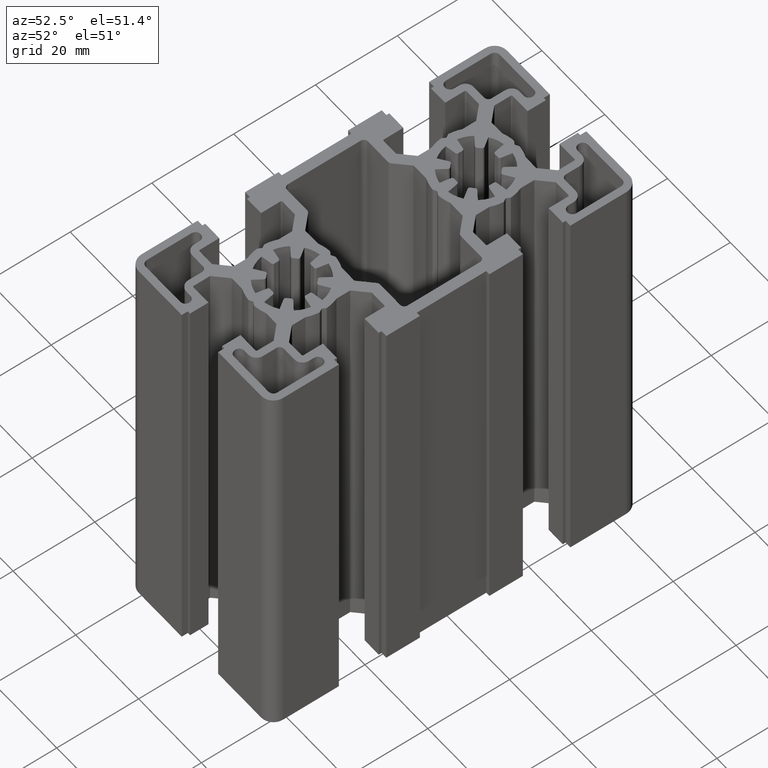
[diagram: clean part render]
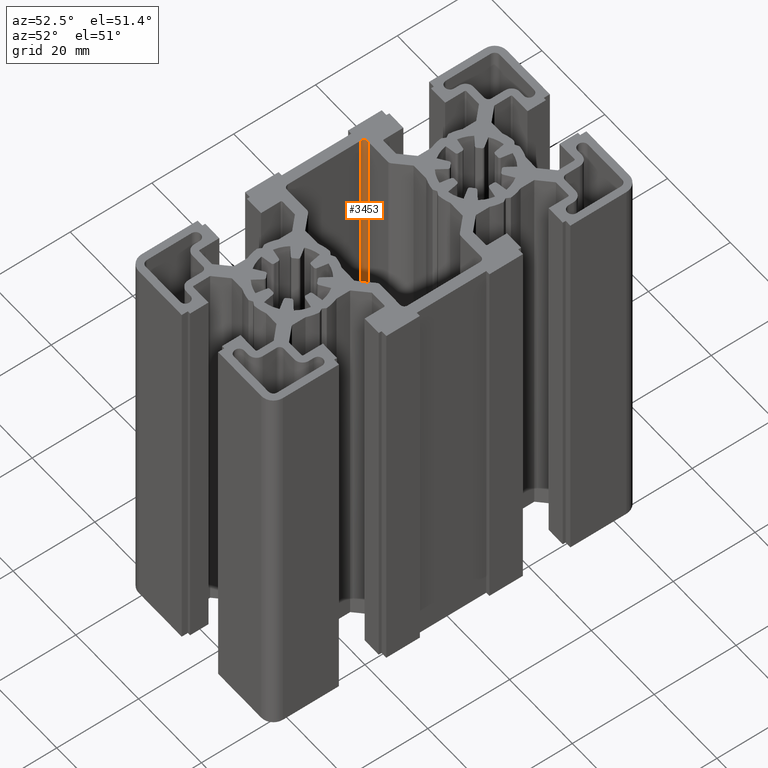
[diagram: same view with one face highlighted and labeled with its STEP entity id]
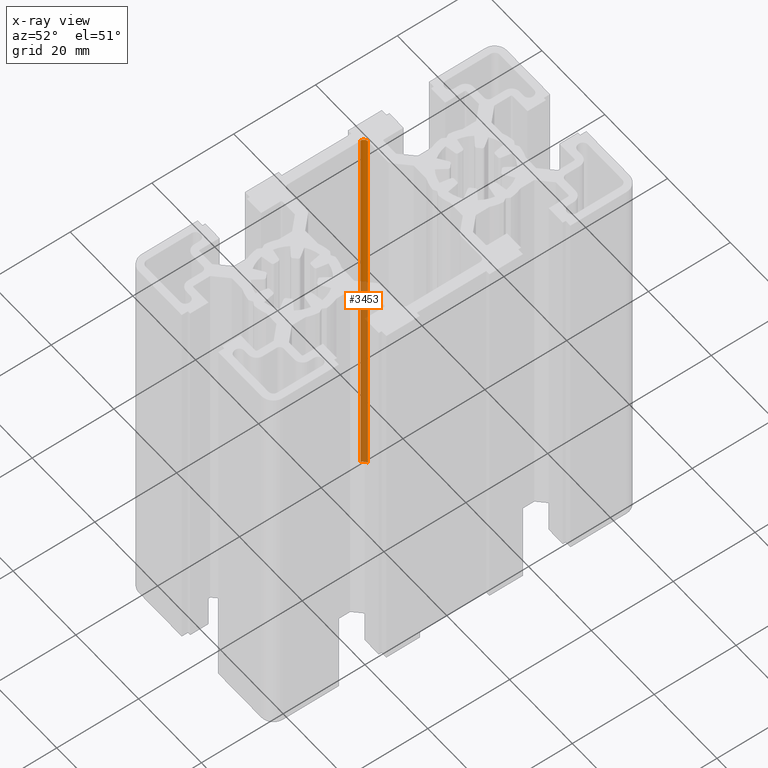
[diagram: x-ray of the same camera — body ghosted, the highlighted face saturated]
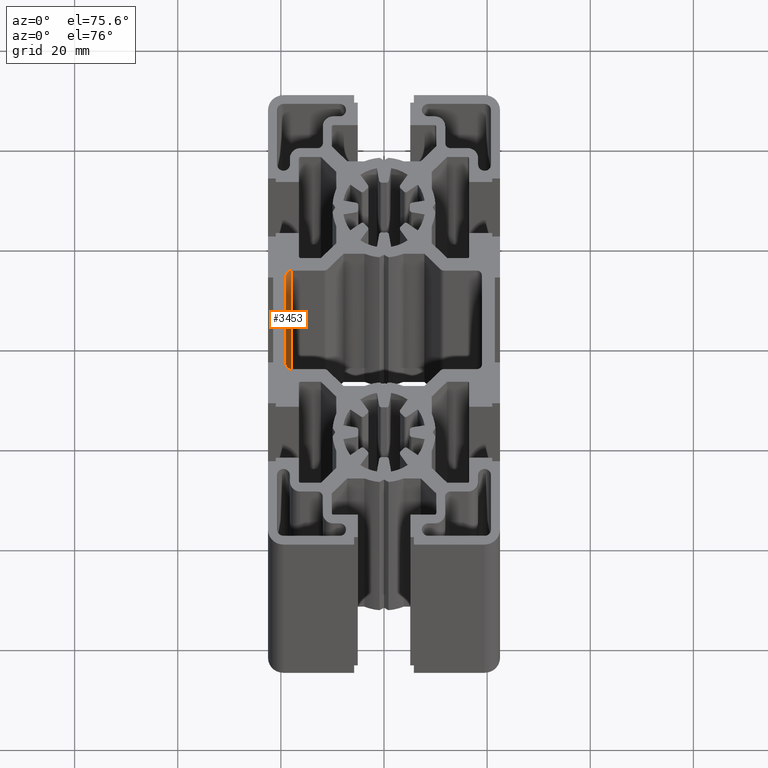
[diagram: same view with one face highlighted and labeled with its STEP entity id]
A machine part, auxiliary view. The second image highlights one B-rep face of the part: STEP entity #3453.
The next image is the same camera in x-ray: the body ghosted, the highlighted face saturated — about 56% of this face is hidden behind the body in this view.
A second angle (auxiliary view) of the same face is appended — the face is thin or edge-on in the first view.
In plain terms, the highlighted cylindrical surface (edge-blend (fillet) strip) has radius 1 mm, axis along (-0, -0, -1).
Its self-contained STEP definition (entity closure, byte-faithful):
#911 = EDGE_CURVE ( 'NONE', #983, #987, #5619, .T. ) ;
#983 = VERTEX_POINT ( 'NONE', #5727 ) ;
#987 = VERTEX_POINT ( 'NONE', #5714 ) ;
#1063 = VERTEX_POINT ( 'NONE', #5889 ) ;
#1179 = EDGE_CURVE ( 'NONE', #1063, #1197, #6088, .T. ) ;
#1197 = VERTEX_POINT ( 'NONE', #6121 ) ;
#3403 = ORIENTED_EDGE ( 'NONE', *, *, #911, .F. ) ;
#3406 = EDGE_LOOP ( 'NONE', ( #3403, #3456, #3458, #3407 ) ) ;
#3407 = ORIENTED_EDGE ( 'NONE', *, *, #3457, .T. ) ;
#3416 = EDGE_CURVE ( 'NONE', #1063, #983, #9276, .T. ) ;
#3453 = ADVANCED_FACE ( 'NONE', ( #9285 ), #9333, .F. ) ;
#3456 = ORIENTED_EDGE ( 'NONE', *, *, #3416, .F. ) ;
#3457 = EDGE_CURVE ( 'NONE', #1197, #987, #9320, .T. ) ;
#3458 = ORIENTED_EDGE ( 'NONE', *, *, #1179, .T. ) ;
#5611 = DIRECTION ( 'NONE',  ( 1.000000000000000000, 0.0000000000000000000, 0.0000000000000000000 ) ) ;
#5612 = DIRECTION ( 'NONE',  ( 0.0000000000000000000, 0.0000000000000000000, 1.000000000000000000 ) ) ;
#5613 = CARTESIAN_POINT ( 'NONE',  ( -18.00000000000000400, 8.875000000000000000, 0.0000000000000000000 ) ) ;
#5619 = CIRCLE ( 'NONE', #5624, 0.9999999999999974500 ) ;
#5624 = AXIS2_PLACEMENT_3D ( 'NONE', #5613, #5612, #5611 ) ;
#5714 = CARTESIAN_POINT ( 'NONE',  ( -19.00000000000000000, 8.875000000000000000, 0.0000000000000000000 ) ) ;
#5727 = CARTESIAN_POINT ( 'NONE',  ( -18.00000000000000400, 9.874999999999998200, 0.0000000000000000000 ) ) ;
#5889 = CARTESIAN_POINT ( 'NONE',  ( -18.00000000000000400, 9.874999999999998200, 100.0000000000000000 ) ) ;
#6088 = CIRCLE ( 'NONE', #6091, 0.9999999999999974500 ) ;
#6091 = AXIS2_PLACEMENT_3D ( 'NONE', #6135, #6134, #6133 ) ;
#6121 = CARTESIAN_POINT ( 'NONE',  ( -19.00000000000000000, 8.875000000000000000, 100.0000000000000000 ) ) ;
#6133 = DIRECTION ( 'NONE',  ( 1.000000000000000000, 0.0000000000000000000, 0.0000000000000000000 ) ) ;
#6134 = DIRECTION ( 'NONE',  ( 0.0000000000000000000, 0.0000000000000000000, 1.000000000000000000 ) ) ;
#6135 = CARTESIAN_POINT ( 'NONE',  ( -18.00000000000000400, 8.875000000000000000, 100.0000000000000000 ) ) ;
#9269 = DIRECTION ( 'NONE',  ( -0.0000000000000000000, -0.0000000000000000000, -1.000000000000000000 ) ) ;
#9270 = VECTOR ( 'NONE', #9269, 1000.000000000000000 ) ;
#9271 = CARTESIAN_POINT ( 'NONE',  ( -18.00000000000000400, 9.874999999999998200, 100.0000000000000000 ) ) ;
#9276 = LINE ( 'NONE', #9271, #9270 ) ;
#9280 = AXIS2_PLACEMENT_3D ( 'NONE', #9327, #9324, #9323 ) ;
#9285 = FACE_OUTER_BOUND ( 'NONE', #3406, .T. ) ;
#9317 = DIRECTION ( 'NONE',  ( -0.0000000000000000000, -0.0000000000000000000, -1.000000000000000000 ) ) ;
#9318 = VECTOR ( 'NONE', #9317, 1000.000000000000000 ) ;
#9319 = CARTESIAN_POINT ( 'NONE',  ( -19.00000000000000000, 8.875000000000000000, 100.0000000000000000 ) ) ;
#9320 = LINE ( 'NONE', #9319, #9318 ) ;
#9323 = DIRECTION ( 'NONE',  ( -1.000000000000000000, 0.0000000000000000000, 0.0000000000000000000 ) ) ;
#9324 = DIRECTION ( 'NONE',  ( -0.0000000000000000000, -0.0000000000000000000, -1.000000000000000000 ) ) ;
#9327 = CARTESIAN_POINT ( 'NONE',  ( -18.00000000000000400, 8.875000000000000000, 100.0000000000000000 ) ) ;
#9333 = CYLINDRICAL_SURFACE ( 'NONE', #9280, 0.9999999999999974500 ) ;